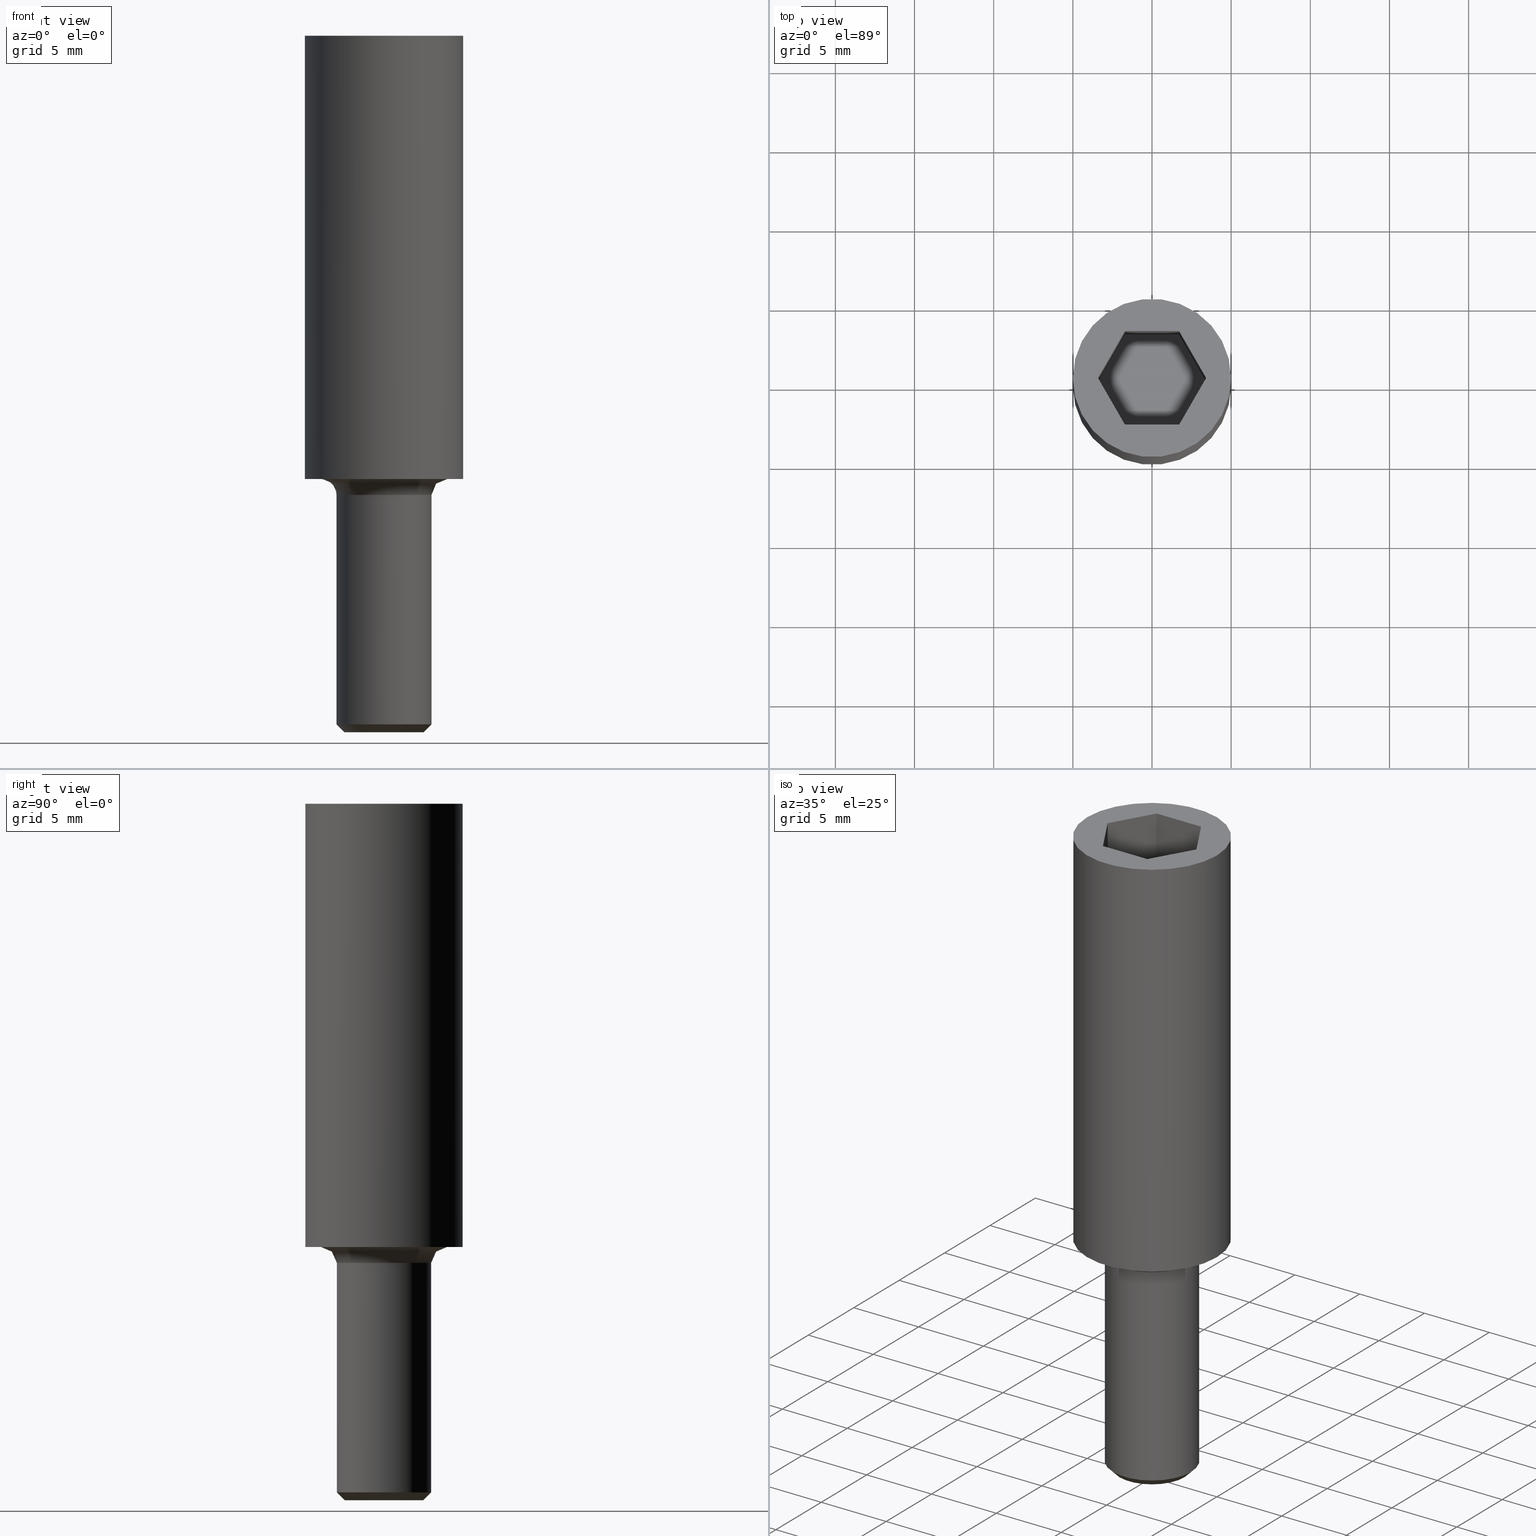
[diagram: canonical four-view strip — front | top / right | iso, engineering-drawing reading convention]
A machine part, canonical four-view strip (front | top / right | iso — engineering-drawing reading convention). The complete STEP part file that produces these views, byte-faithful:
ISO-10303-21;
HEADER;
/****************************************************************
 * Generated by software with PDE/Lib inside                    *
 * PDElib Version v4.4, created Mon 02/23/2004                  *
 * International Technegroup Inc. (www.iti-oh.com)              *
 ****************************************************************/
FILE_DESCRIPTION(('STEP AP203'),'2;1');
FILE_NAME('XT10203.stp','2011-02-02T13:37:32',(''),(''),'2009.3.110','THINKDESIGN','');
FILE_SCHEMA(('CONFIG_CONTROL_DESIGN'));
ENDSEC;
DATA;
#2=CARTESIAN_POINT('',(10.0,-10.0,27.999999999999886));
#3=DIRECTION('',(0.0,0.0,1.0));
#4=DIRECTION('',(0.0,1.0,0.0));
#5=AXIS2_PLACEMENT_3D('',#2,#3,#4);
#6=PLANE('',#5);
#7=CARTESIAN_POINT('',(5.0,0.0,27.999999999999886));
#8=VERTEX_POINT('',#7);
#9=CARTESIAN_POINT('',(-5.0,0.0,27.999999999999886));
#10=VERTEX_POINT('',#9);
#11=CARTESIAN_POINT('',(0.0,0.0,27.999999999999886));
#12=DIRECTION('',(0.0,-6.123234E-017,-1.0));
#13=DIRECTION('',(-1.0,0.0,0.0));
#14=AXIS2_PLACEMENT_3D('',#11,#12,#13);
#15=CIRCLE('',#14,5.0);
#16=EDGE_CURVE('',#8,#10,#15,.T.);
#17=ORIENTED_EDGE('',*,*,#16,.F.);
#18=CARTESIAN_POINT('',(0.0,0.0,27.999999999999886));
#19=DIRECTION('',(0.0,-6.123234E-017,-1.0));
#20=DIRECTION('',(-1.0,0.0,0.0));
#21=AXIS2_PLACEMENT_3D('',#18,#19,#20);
#22=CIRCLE('',#21,5.0);
#23=EDGE_CURVE('',#10,#8,#22,.T.);
#24=ORIENTED_EDGE('',*,*,#23,.F.);
#25=EDGE_LOOP('',(#17,#24));
#26=FACE_OUTER_BOUND('',#25,.T.);
#27=CARTESIAN_POINT('',(3.421172276945413,0.0,27.999999999999773));
#28=VERTEX_POINT('',#27);
#29=CARTESIAN_POINT('',(1.710586138472991,2.962822102557766,27.999999999999773));
#30=VERTEX_POINT('',#29);
#31=CARTESIAN_POINT('',(3.421172276945413,0.0,27.999999999999773));
#32=DIRECTION('',(-0.499999999999939,0.866025403784474,0.0));
#33=VECTOR('',#32,3.421172276945260);
#34=LINE('',#31,#33);
#35=EDGE_CURVE('',#28,#30,#34,.T.);
#36=ORIENTED_EDGE('',*,*,#35,.F.);
#37=CARTESIAN_POINT('',(1.710586138472991,-2.962822102557823,27.999999999999773));
#38=VERTEX_POINT('',#37);
#39=CARTESIAN_POINT('',(1.710586138472990,-2.962822102557823,27.999999999999773));
#40=DIRECTION('',(0.499999999999932,0.866025403784478,0.0));
#41=VECTOR('',#40,3.421172276945309);
#42=LINE('',#39,#41);
#43=EDGE_CURVE('',#38,#28,#42,.T.);
#44=ORIENTED_EDGE('',*,*,#43,.F.);
#45=CARTESIAN_POINT('',(-1.710586138472536,-2.962822102557823,27.999999999999773));
#46=VERTEX_POINT('',#45);
#47=CARTESIAN_POINT('',(-1.710586138472536,-2.962822102557823,27.999999999999773));
#48=DIRECTION('',(1.0,0.0,0.0));
#49=VECTOR('',#48,3.421172276945526);
#50=LINE('',#47,#49);
#51=EDGE_CURVE('',#46,#38,#50,.T.);
#52=ORIENTED_EDGE('',*,*,#51,.F.);
#53=CARTESIAN_POINT('',(-3.421172276945640,0.0,27.999999999999773));
#54=VERTEX_POINT('',#53);
#55=CARTESIAN_POINT('',(-3.421172276945641,0.0,27.999999999999773));
#56=DIRECTION('',(0.500000000000082,-0.866025403784391,0.0));
#57=VECTOR('',#56,3.421172276945650);
#58=LINE('',#55,#57);
#59=EDGE_CURVE('',#54,#46,#58,.T.);
#60=ORIENTED_EDGE('',*,*,#59,.F.);
#61=CARTESIAN_POINT('',(-1.710586138472536,2.962822102557766,27.999999999999773));
#62=VERTEX_POINT('',#61);
#63=CARTESIAN_POINT('',(-1.710586138472535,2.962822102557766,27.999999999999773));
#64=DIRECTION('',(-0.500000000000089,-0.866025403784387,0.0));
#65=VECTOR('',#64,3.421172276945601);
#66=LINE('',#63,#65);
#67=EDGE_CURVE('',#62,#54,#66,.T.);
#68=ORIENTED_EDGE('',*,*,#67,.F.);
#69=CARTESIAN_POINT('',(1.710586138472991,2.962822102557766,27.999999999999773));
#70=DIRECTION('',(-1.0,0.0,0.0));
#71=VECTOR('',#70,3.421172276945526);
#72=LINE('',#69,#71);
#73=EDGE_CURVE('',#30,#62,#72,.T.);
#74=ORIENTED_EDGE('',*,*,#73,.F.);
#75=EDGE_LOOP('',(#36,#44,#52,#60,#68,#74));
#76=FACE_BOUND('',#75,.T.);
#77=ADVANCED_FACE('',(#26,#76),#6,.T.);
#78=CARTESIAN_POINT('',(0.0,0.0,27.999999999999886));
#79=DIRECTION('',(0.0,-6.123234E-017,-1.0));
#80=DIRECTION('',(-1.0,0.0,0.0));
#81=AXIS2_PLACEMENT_3D('',#78,#79,#80);
#82=CYLINDRICAL_SURFACE('',#81,5.0);
#83=ORIENTED_EDGE('',*,*,#23,.T.);
#84=ORIENTED_EDGE('',*,*,#16,.T.);
#85=CARTESIAN_POINT('',(-5.0,0.0,0.0));
#86=VERTEX_POINT('',#85);
#87=CARTESIAN_POINT('',(-5.0,1.714506E-015,27.999999999999886));
#88=DIRECTION('',(0.0,0.0,-1.0));
#89=VECTOR('',#88,27.999999999999886);
#90=LINE('',#87,#89);
#91=EDGE_CURVE('',#10,#86,#90,.T.);
#92=ORIENTED_EDGE('',*,*,#91,.T.);
#93=CARTESIAN_POINT('',(5.0,0.0,0.0));
#94=VERTEX_POINT('',#93);
#95=CARTESIAN_POINT('',(0.0,0.0,0.0));
#96=DIRECTION('',(0.0,-6.123234E-017,-1.0));
#97=DIRECTION('',(-1.0,0.0,0.0));
#98=AXIS2_PLACEMENT_3D('',#95,#96,#97);
#99=CIRCLE('',#98,5.0);
#100=EDGE_CURVE('',#94,#86,#99,.T.);
#101=ORIENTED_EDGE('',*,*,#100,.F.);
#102=CARTESIAN_POINT('',(0.0,0.0,0.0));
#103=DIRECTION('',(0.0,-6.123234E-017,-1.0));
#104=DIRECTION('',(-1.0,0.0,0.0));
#105=AXIS2_PLACEMENT_3D('',#102,#103,#104);
#106=CIRCLE('',#105,5.0);
#107=EDGE_CURVE('',#86,#94,#106,.T.);
#108=ORIENTED_EDGE('',*,*,#107,.F.);
#109=ORIENTED_EDGE('',*,*,#91,.F.);
#110=EDGE_LOOP('',(#83,#84,#92,#101,#108,#109));
#111=FACE_OUTER_BOUND('',#110,.T.);
#112=ADVANCED_FACE('',(#111),#82,.T.);
#113=CARTESIAN_POINT('',(-3.0,-3.522098E-015,-15.500000000000000));
#114=CARTESIAN_POINT('',(-3.000000000000001,2.999999999999996,-15.500000000000002));
#115=CARTESIAN_POINT('',(-7.560974E-016,2.999999999999997,-15.500000000000000));
#116=CARTESIAN_POINT('',(2.999999999999999,2.999999999999998,-15.500000000000002));
#117=CARTESIAN_POINT('',(3.0,-2.009903E-015,-15.500000000000000));
#118=CARTESIAN_POINT('',(3.000000000000001,-3.000000000000002,-15.500000000000002));
#119=CARTESIAN_POINT('',(7.560974E-016,-3.000000000000003,-15.500000000000000));
#120=CARTESIAN_POINT('',(-2.999999999999999,-3.000000000000003,-15.500000000000002));
#121=CARTESIAN_POINT('',(-3.0,-3.522098E-015,-15.500000000000000));
#122=CARTESIAN_POINT('',(-2.500000000000000,-3.552714E-015,-16.0));
#123=CARTESIAN_POINT('',(-2.500000000000001,2.499999999999996,-16.0));
#124=CARTESIAN_POINT('',(-7.560974E-016,2.499999999999997,-16.0));
#125=CARTESIAN_POINT('',(2.499999999999999,2.499999999999998,-16.0));
#126=CARTESIAN_POINT('',(2.500000000000000,-2.040519E-015,-16.0));
#127=CARTESIAN_POINT('',(2.500000000000001,-2.500000000000002,-16.0));
#128=CARTESIAN_POINT('',(7.560974E-016,-2.500000000000003,-16.0));
#129=CARTESIAN_POINT('',(-2.499999999999999,-2.500000000000004,-16.0));
#130=CARTESIAN_POINT('',(-2.500000000000000,-3.552714E-015,-16.0));
#138=(BOUNDED_SURFACE()B_SPLINE_SURFACE(2,1,((#113,#122),(#114,#123),(#115,#124),(#116,#125),(#117,#126),(#118,#127),(#119,#128),(#120,#129),(#121,#130)),.UNSPECIFIED.,.T.,.F.,.U.)B_SPLINE_SURFACE_WITH_KNOTS((3,2,2,2,3),(2,2),(0.0,0.250000000000000,0.500000000000000,0.750000000000000,1.0),(-0.707106781186548,0.0),.UNSPECIFIED.)GEOMETRIC_REPRESENTATION_ITEM()RATIONAL_B_SPLINE_SURFACE(((1.0,1.0),(0.707106781186548,0.707106781186548),(1.0,1.0),(0.707106781186548,0.707106781186548),(1.0,1.0),(0.707106781186548,0.707106781186548),(1.0,1.0),(0.707106781186548,0.707106781186548),(1.0,1.0)))REPRESENTATION_ITEM('')SURFACE());
#139=CARTESIAN_POINT('',(-3.0,-3.552714E-015,-15.500000000000000));
#140=VERTEX_POINT('',#139);
#141=CARTESIAN_POINT('',(3.0,-3.552714E-015,-15.500000000000000));
#142=VERTEX_POINT('',#141);
#143=CARTESIAN_POINT('',(0.0,-3.552714E-015,-15.500000000000000));
#144=DIRECTION('',(0.0,-6.123234E-017,-1.0));
#145=DIRECTION('',(-1.0,0.0,0.0));
#146=AXIS2_PLACEMENT_3D('',#143,#144,#145);
#147=CIRCLE('',#146,3.0);
#148=EDGE_CURVE('',#140,#142,#147,.T.);
#149=ORIENTED_EDGE('',*,*,#148,.T.);
#150=CARTESIAN_POINT('',(0.0,-3.552714E-015,-15.500000000000000));
#151=DIRECTION('',(0.0,-6.123234E-017,-1.0));
#152=DIRECTION('',(-1.0,0.0,0.0));
#153=AXIS2_PLACEMENT_3D('',#150,#151,#152);
#154=CIRCLE('',#153,3.0);
#155=EDGE_CURVE('',#142,#140,#154,.T.);
#156=ORIENTED_EDGE('',*,*,#155,.T.);
#157=CARTESIAN_POINT('',(-2.500000000000000,-3.552714E-015,-16.0));
#158=VERTEX_POINT('',#157);
#159=CARTESIAN_POINT('',(-3.0,-3.522098E-015,-15.500000000000000));
#160=DIRECTION('',(0.707106781186547,-4.329780E-017,-0.707106781186547));
#161=VECTOR('',#160,0.707106781186548);
#162=LINE('',#159,#161);
#163=EDGE_CURVE('',#140,#158,#162,.T.);
#164=ORIENTED_EDGE('',*,*,#163,.T.);
#165=CARTESIAN_POINT('',(2.500000000000000,-3.552714E-015,-16.0));
#166=VERTEX_POINT('',#165);
#167=CARTESIAN_POINT('',(0.0,-3.552714E-015,-16.0));
#168=DIRECTION('',(0.0,-6.123234E-017,-1.0));
#169=DIRECTION('',(-1.0,0.0,0.0));
#170=AXIS2_PLACEMENT_3D('',#167,#168,#169);
#171=CIRCLE('',#170,2.500000000000000);
#172=EDGE_CURVE('',#166,#158,#171,.T.);
#173=ORIENTED_EDGE('',*,*,#172,.F.);
#174=CARTESIAN_POINT('',(0.0,-3.552714E-015,-16.0));
#175=DIRECTION('',(0.0,-6.123234E-017,-1.0));
#176=DIRECTION('',(-1.0,0.0,0.0));
#177=AXIS2_PLACEMENT_3D('',#174,#175,#176);
#178=CIRCLE('',#177,2.500000000000000);
#179=EDGE_CURVE('',#158,#166,#178,.T.);
#180=ORIENTED_EDGE('',*,*,#179,.F.);
#181=ORIENTED_EDGE('',*,*,#163,.F.);
#182=EDGE_LOOP('',(#149,#156,#164,#173,#180,#181));
#183=FACE_OUTER_BOUND('',#182,.T.);
#184=ADVANCED_FACE('',(#183),#138,.T.);
#185=CARTESIAN_POINT('',(-5.0,-5.000000000000004,-16.0));
#186=DIRECTION('',(0.0,0.0,-1.0));
#187=DIRECTION('',(0.0,1.0,0.0));
#188=AXIS2_PLACEMENT_3D('',#185,#186,#187);
#189=PLANE('',#188);
#190=ORIENTED_EDGE('',*,*,#179,.T.);
#191=ORIENTED_EDGE('',*,*,#172,.T.);
#192=EDGE_LOOP('',(#190,#191));
#193=FACE_OUTER_BOUND('',#192,.T.);
#194=ADVANCED_FACE('',(#193),#189,.T.);
#195=CARTESIAN_POINT('',(-10.0,-10.000000000000002,0.0));
#196=DIRECTION('',(0.0,0.0,-1.0));
#197=DIRECTION('',(0.0,1.0,0.0));
#198=AXIS2_PLACEMENT_3D('',#195,#196,#197);
#199=PLANE('',#198);
#200=ORIENTED_EDGE('',*,*,#107,.T.);
#201=ORIENTED_EDGE('',*,*,#100,.T.);
#202=EDGE_LOOP('',(#200,#201));
#203=FACE_OUTER_BOUND('',#202,.T.);
#204=CARTESIAN_POINT('',(4.0,0.0,0.0));
#205=VERTEX_POINT('',#204);
#206=CARTESIAN_POINT('',(-4.0,0.0,0.0));
#207=VERTEX_POINT('',#206);
#208=CARTESIAN_POINT('',(0.0,0.0,0.0));
#209=DIRECTION('',(0.0,-6.123234E-017,-1.0));
#210=DIRECTION('',(-1.0,0.0,0.0));
#211=AXIS2_PLACEMENT_3D('',#208,#209,#210);
#212=CIRCLE('',#211,4.0);
#213=EDGE_CURVE('',#205,#207,#212,.T.);
#214=ORIENTED_EDGE('',*,*,#213,.F.);
#215=CARTESIAN_POINT('',(0.0,0.0,0.0));
#216=DIRECTION('',(0.0,-6.123234E-017,-1.0));
#217=DIRECTION('',(-1.0,0.0,0.0));
#218=AXIS2_PLACEMENT_3D('',#215,#216,#217);
#219=CIRCLE('',#218,4.0);
#220=EDGE_CURVE('',#207,#205,#219,.T.);
#221=ORIENTED_EDGE('',*,*,#220,.F.);
#222=EDGE_LOOP('',(#214,#221));
#223=FACE_BOUND('',#222,.T.);
#224=ADVANCED_FACE('',(#203,#223),#199,.T.);
#225=CARTESIAN_POINT('',(0.0,0.0,0.0));
#226=DIRECTION('',(0.0,-6.123234E-017,-1.0));
#227=DIRECTION('',(-1.0,0.0,0.0));
#228=AXIS2_PLACEMENT_3D('',#225,#226,#227);
#229=CYLINDRICAL_SURFACE('',#228,3.0);
#230=ORIENTED_EDGE('',*,*,#155,.F.);
#231=ORIENTED_EDGE('',*,*,#148,.F.);
#232=CARTESIAN_POINT('',(-3.0,0.0,-1.0));
#233=VERTEX_POINT('',#232);
#234=CARTESIAN_POINT('',(-3.0,-2.664845E-015,-1.0));
#235=DIRECTION('',(0.0,0.0,-1.0));
#236=VECTOR('',#235,14.500000000000000);
#237=LINE('',#234,#236);
#238=EDGE_CURVE('',#233,#140,#237,.T.);
#239=ORIENTED_EDGE('',*,*,#238,.F.);
#240=CARTESIAN_POINT('',(3.0,0.0,-1.0));
#241=VERTEX_POINT('',#240);
#242=CARTESIAN_POINT('',(0.0,0.0,-1.0));
#243=DIRECTION('',(0.0,-6.123234E-017,-1.0));
#244=DIRECTION('',(-1.0,0.0,0.0));
#245=AXIS2_PLACEMENT_3D('',#242,#243,#244);
#246=CIRCLE('',#245,3.0);
#247=EDGE_CURVE('',#233,#241,#246,.T.);
#248=ORIENTED_EDGE('',*,*,#247,.T.);
#249=CARTESIAN_POINT('',(0.0,0.0,-1.0));
#250=DIRECTION('',(0.0,-6.123234E-017,-1.0));
#251=DIRECTION('',(-1.0,0.0,0.0));
#252=AXIS2_PLACEMENT_3D('',#249,#250,#251);
#253=CIRCLE('',#252,3.0);
#254=EDGE_CURVE('',#241,#233,#253,.T.);
#255=ORIENTED_EDGE('',*,*,#254,.T.);
#256=ORIENTED_EDGE('',*,*,#238,.T.);
#257=EDGE_LOOP('',(#230,#231,#239,#248,#255,#256));
#258=FACE_OUTER_BOUND('',#257,.T.);
#259=ADVANCED_FACE('',(#258),#229,.T.);
#260=CARTESIAN_POINT('',(-3.0,0.0,-1.0));
#261=CARTESIAN_POINT('',(-3.0,0.0,-0.869939785322581));
#262=CARTESIAN_POINT('',(-3.052038776115778,0.0,-0.606972182656724));
#263=CARTESIAN_POINT('',(-3.274587088527055,0.0,-0.274587088527053));
#264=CARTESIAN_POINT('',(-3.606972182656724,0.0,-0.052038776115779));
#265=CARTESIAN_POINT('',(-3.869939785322581,0.0,-7.963891E-018));
#266=CARTESIAN_POINT('',(-4.0,0.0,0.0));
#267=CARTESIAN_POINT('',(-3.0,0.390180644032257,-1.0));
#268=CARTESIAN_POINT('',(-3.0,0.390180644032257,-0.869939785322581));
#269=CARTESIAN_POINT('',(-3.052038776115778,0.396948818425425,-0.606972182656724));
#270=CARTESIAN_POINT('',(-3.274587088527055,0.425893499713733,-0.274587088527053));
#271=CARTESIAN_POINT('',(-3.606972182656724,0.469123576411812,-0.052038776115779));
#272=CARTESIAN_POINT('',(-3.869939785322581,0.503325199267739,-4.101004E-017));
#273=CARTESIAN_POINT('',(-4.0,0.520240858709675,-3.773245E-017));
#274=CARTESIAN_POINT('',(-2.881695132026207,0.984548886778619,-1.0));
#275=CARTESIAN_POINT('',(-2.881695132026207,0.984548886778619,-0.869939785322581));
#276=CARTESIAN_POINT('',(-2.931681761296019,1.001627126476656,-0.606972182656724));
#277=CARTESIAN_POINT('',(-3.145453890801431,1.074663690889650,-0.274587088527053));
#278=CARTESIAN_POINT('',(-3.464731393371940,1.183746815692041,-0.052038776115779));
#279=CARTESIAN_POINT('',(-3.717328880199542,1.270048302513211,4.963170E-018));
#280=CARTESIAN_POINT('',(-3.842260176034944,1.312731849038159,-3.932038E-017));
#281=CARTESIAN_POINT('',(-2.510343393690837,1.677238525654577,-1.000000000000000));
#282=CARTESIAN_POINT('',(-2.510343393690837,1.677238525654577,-0.869939785322581));
#283=CARTESIAN_POINT('',(-2.553888459636838,1.706332339031009,-0.606972182656725));
#284=CARTESIAN_POINT('',(-2.740112688249732,1.830754540162877,-0.274587088527053));
#285=CARTESIAN_POINT('',(-3.018246263319642,2.016584235238745,-0.052038776115779));
#286=CARTESIAN_POINT('',(-3.238292591355292,2.163604033302146,-2.698336E-016));
#287=CARTESIAN_POINT('',(-3.347124524921115,2.236318034206103,-2.558292E-016));
#288=CARTESIAN_POINT('',(-2.011822118074937,2.285908329214795,-1.000000000000000));
#289=CARTESIAN_POINT('',(-2.011822118074937,2.285908329214795,-0.869939785322581));
#290=CARTESIAN_POINT('',(-2.046719705004026,2.325560286469862,-0.606972182656725));
#291=CARTESIAN_POINT('',(-2.195962244087114,2.495135300134405,-0.274587088527053));
#292=CARTESIAN_POINT('',(-2.418862138783275,2.748402585193690,-0.052038776115779));
#293=CARTESIAN_POINT('',(-2.595210151910046,2.948775862942867,-2.267968E-016));
#294=CARTESIAN_POINT('',(-2.682429490766582,3.047877772286392,-2.027120E-016));
#295=CARTESIAN_POINT('',(-1.177631781629216,2.844239639793226,-1.000000000000000));
#296=CARTESIAN_POINT('',(-1.177631781629216,2.844239639793226,-0.869939785322581));
#297=CARTESIAN_POINT('',(-1.198059287172892,2.893576556404833,-0.606972182656725));
#298=CARTESIAN_POINT('',(-1.285419275720714,3.104570133714581,-0.274587088527053));
#299=CARTESIAN_POINT('',(-1.415895025916354,3.419697753847915,-0.052038776115779));
#300=CARTESIAN_POINT('',(-1.519121361395739,3.669012047009125,-1.987402E-016));
#301=CARTESIAN_POINT('',(-1.570175708838955,3.792319519724302,-2.280029E-016));
#302=CARTESIAN_POINT('',(-0.000082243839032,3.077983219408573,-1.000000000000000));
#303=CARTESIAN_POINT('',(-0.000082243839032,3.077983219408573,-0.869939785322581));
#304=CARTESIAN_POINT('',(-0.000083670461941,3.131374712622881,-0.606972182656725));
#305=CARTESIAN_POINT('',(-0.000089771537802,3.359708036326083,-0.274587088527053));
#306=CARTESIAN_POINT('',(-0.000098883746528,3.700733283696972,-0.052038776115779));
#307=CARTESIAN_POINT('',(-0.000106092901589,3.970536573114840,-2.424042E-016));
#308=CARTESIAN_POINT('',(-0.000109658452043,4.103977625878097,-2.225727E-016));
#309=CARTESIAN_POINT('',(1.177960756985342,2.843827482572481,-1.000000000000000));
#310=CARTESIAN_POINT('',(1.177960756985342,2.843827482572481,-0.869939785322581));
#311=CARTESIAN_POINT('',(1.198393969020654,2.893157249798311,-0.606972182656725));
#312=CARTESIAN_POINT('',(1.285778361871919,3.104120252143417,-0.274587088527053));
#313=CARTESIAN_POINT('',(1.416290560902462,3.419202207304545,-0.052038776115779));
#314=CARTESIAN_POINT('',(1.519545733002094,3.668480372467003,-2.116940E-016));
#315=CARTESIAN_POINT('',(1.570614342647124,3.791769976763309,-2.139739E-016));
#316=CARTESIAN_POINT('',(2.176540998469279,2.176538435504660,-1.000000000000000));
#317=CARTESIAN_POINT('',(2.176540998469279,2.176538435504660,-0.869939785322582));
#318=CARTESIAN_POINT('',(2.214295841711331,2.214293234288864,-0.606972182656725));
#319=CARTESIAN_POINT('',(2.375757683745761,2.375754886195479,-0.274587088527053));
#320=CARTESIAN_POINT('',(2.616907611963526,2.616904530449498,-0.052038776115779));
#321=CARTESIAN_POINT('',(2.807694201453999,2.807690895281084,-2.908709E-016));
#322=CARTESIAN_POINT('',(2.902054664625705,2.902051247339548,-2.537994E-016));
#323=CARTESIAN_POINT('',(2.843797310495395,1.177940836766737,-1.000000000000000));
#324=CARTESIAN_POINT('',(2.843797310495395,1.177940836766737,-0.869939785322581));
#325=CARTESIAN_POINT('',(2.893126554348569,1.198373703260784,-0.606972182656724));
#326=CARTESIAN_POINT('',(3.104087318445396,1.285756618375037,-0.274587088527053));
#327=CARTESIAN_POINT('',(3.419165930690298,1.416266610344336,-0.052038776115779));
#328=CARTESIAN_POINT('',(3.668441451093161,1.519520036319924,-6.002865E-017));
#329=CARTESIAN_POINT('',(3.791729747327193,1.570587782355650,-1.030960E-016));
#330=CARTESIAN_POINT('',(3.078101344752303,2.997602E-015,-1.0));
#331=CARTESIAN_POINT('',(3.078101344752303,2.997602E-015,-0.869939785322581));
#332=CARTESIAN_POINT('',(3.131494886999383,2.831069E-015,-0.606972182656724));
#333=CARTESIAN_POINT('',(3.359836973567885,3.219647E-015,-0.274587088527053));
#334=CARTESIAN_POINT('',(3.700875308639938,3.330669E-015,-0.052038776115779));
#335=CARTESIAN_POINT('',(3.970688952437292,3.719247E-015,-1.746625E-017));
#336=CARTESIAN_POINT('',(4.104135126336404,3.996803E-015,4.958412E-020));
#337=CARTESIAN_POINT('',(2.843797310495393,-1.177940836766743,-1.000000000000000));
#338=CARTESIAN_POINT('',(2.843797310495393,-1.177940836766743,-0.869939785322581));
#339=CARTESIAN_POINT('',(2.893126554348569,-1.198373703260788,-0.606972182656725));
#340=CARTESIAN_POINT('',(3.104087318445393,-1.285756618375043,-0.274587088527053));
#341=CARTESIAN_POINT('',(3.419165930690297,-1.416266610344341,-0.052038776115779));
#342=CARTESIAN_POINT('',(3.668441451093159,-1.519520036319929,8.211030E-017));
#343=CARTESIAN_POINT('',(3.791729747327192,-1.570587782355656,1.028977E-016));
#344=CARTESIAN_POINT('',(2.176540998469282,-2.176538435504656,-1.0));
#345=CARTESIAN_POINT('',(2.176540998469282,-2.176538435504656,-0.869939785322581));
#346=CARTESIAN_POINT('',(2.214295841711332,-2.214293234288860,-0.606972182656724));
#347=CARTESIAN_POINT('',(2.375757683745765,-2.375754886195472,-0.274587088527053));
#348=CARTESIAN_POINT('',(2.616907611963529,-2.616904530449495,-0.052038776115779));
#349=CARTESIAN_POINT('',(2.807694201454003,-2.807690895281078,3.073755E-016));
#350=CARTESIAN_POINT('',(2.902054664625709,-2.902051247339541,2.544936E-016));
#351=CARTESIAN_POINT('',(1.177960756985343,-2.843827482572483,-1.000000000000000));
#352=CARTESIAN_POINT('',(1.177960756985343,-2.843827482572483,-0.869939785322581));
#353=CARTESIAN_POINT('',(1.198393969020654,-2.893157249798311,-0.606972182656724));
#354=CARTESIAN_POINT('',(1.285778361871919,-3.104120252143417,-0.274587088527053));
#355=CARTESIAN_POINT('',(1.416290560902463,-3.419202207304546,-0.052038776115779));
#356=CARTESIAN_POINT('',(1.519545733002094,-3.668480372467003,1.698197E-016));
#357=CARTESIAN_POINT('',(1.570614342647123,-3.791769976763310,2.113955E-016));
#358=CARTESIAN_POINT('',(-0.000082243839032,-3.077983219408573,-1.000000000000000));
#359=CARTESIAN_POINT('',(-0.000082243839032,-3.077983219408573,-0.869939785322581));
#360=CARTESIAN_POINT('',(-0.000083670461940,-3.131374712622880,-0.606972182656724));
#361=CARTESIAN_POINT('',(-0.000089771537801,-3.359708036326082,-0.274587088527053));
#362=CARTESIAN_POINT('',(-0.000098883746528,-3.700733283696971,-0.052038776115779));
#363=CARTESIAN_POINT('',(-0.000106092901589,-3.970536573114839,2.426747E-016));
#364=CARTESIAN_POINT('',(-0.000109658452042,-4.103977625878096,2.321920E-016));
#365=CARTESIAN_POINT('',(-1.177631781629215,-2.844239639793227,-1.000000000000000));
#366=CARTESIAN_POINT('',(-1.177631781629215,-2.844239639793227,-0.869939785322581));
#367=CARTESIAN_POINT('',(-1.198059287172892,-2.893576556404836,-0.606972182656725));
#368=CARTESIAN_POINT('',(-1.285419275720713,-3.104570133714579,-0.274587088527053));
#369=CARTESIAN_POINT('',(-1.415895025916352,-3.419697753847917,-0.052038776115779));
#370=CARTESIAN_POINT('',(-1.519121361395738,-3.669012047009126,1.439658E-016));
#371=CARTESIAN_POINT('',(-1.570175708838954,-3.792319519724303,1.921040E-016));
#372=CARTESIAN_POINT('',(-2.011822118074935,-2.285908329214796,-1.0));
#373=CARTESIAN_POINT('',(-2.011822118074935,-2.285908329214796,-0.869939785322581));
#374=CARTESIAN_POINT('',(-2.046719705004025,-2.325560286469861,-0.606972182656724));
#375=CARTESIAN_POINT('',(-2.195962244087112,-2.495135300134407,-0.274587088527053));
#376=CARTESIAN_POINT('',(-2.418862138783276,-2.748402585193692,-0.052038776115778));
#377=CARTESIAN_POINT('',(-2.595210151910046,-2.948775862942868,3.665354E-016));
#378=CARTESIAN_POINT('',(-2.682429490766581,-3.047877772286394,3.085128E-016));
#379=CARTESIAN_POINT('',(-2.510343393690835,-1.677238525654579,-1.000000000000000));
#380=CARTESIAN_POINT('',(-2.510343393690835,-1.677238525654579,-0.869939785322581));
#381=CARTESIAN_POINT('',(-2.553888459636836,-1.706332339031011,-0.606972182656725));
#382=CARTESIAN_POINT('',(-2.740112688249731,-1.830754540162879,-0.274587088527053));
#383=CARTESIAN_POINT('',(-3.018246263319639,-2.016584235238747,-0.052038776115779));
#384=CARTESIAN_POINT('',(-3.238292591355290,-2.163604033302148,5.120764E-017));
#385=CARTESIAN_POINT('',(-3.347124524921113,-2.236318034206105,7.160299E-017));
#386=CARTESIAN_POINT('',(-2.881695132026210,-0.984548886778617,-1.000000000000000));
#387=CARTESIAN_POINT('',(-2.881695132026210,-0.984548886778617,-0.869939785322581));
#388=CARTESIAN_POINT('',(-2.931681761296023,-1.001627126476654,-0.606972182656725));
#389=CARTESIAN_POINT('',(-3.145453890801433,-1.074663690889646,-0.274587088527053));
#390=CARTESIAN_POINT('',(-3.464731393371944,-1.183746815692039,-0.052038776115779));
#391=CARTESIAN_POINT('',(-3.717328880199547,-1.270048302513209,1.496874E-016));
#392=CARTESIAN_POINT('',(-3.842260176034947,-1.312731849038155,1.492884E-016));
#393=CARTESIAN_POINT('',(-3.0,-0.390180644032258,-1.0));
#394=CARTESIAN_POINT('',(-3.0,-0.390180644032258,-0.869939785322581));
#395=CARTESIAN_POINT('',(-3.052038776115778,-0.396948818425426,-0.606972182656724));
#396=CARTESIAN_POINT('',(-3.274587088527055,-0.425893499713734,-0.274587088527053));
#397=CARTESIAN_POINT('',(-3.606972182656724,-0.469123576411813,-0.052038776115779));
#398=CARTESIAN_POINT('',(-3.869939785322581,-0.503325199267741,2.508225E-017));
#399=CARTESIAN_POINT('',(-4.0,-0.520240858709677,3.773245E-017));
#400=CARTESIAN_POINT('',(-3.0,-7.347881E-016,-1.0));
#401=CARTESIAN_POINT('',(-3.0,-7.347881E-016,-0.869939785322581));
#402=CARTESIAN_POINT('',(-3.052038776115778,-7.475339E-016,-0.606972182656724));
#403=CARTESIAN_POINT('',(-3.274587088527055,-8.020425E-016,-0.274587088527053));
#404=CARTESIAN_POINT('',(-3.606972182656724,-8.834534E-016,-0.052038776115779));
#405=CARTESIAN_POINT('',(-3.869939785322581,-9.478619E-016,-7.963891E-018));
#406=CARTESIAN_POINT('',(-4.0,-9.797174E-016,0.0));
#407=B_SPLINE_SURFACE_WITH_KNOTS('',3,3,((#260,#267,#274,#281,#288,#295,#302,#309,#316,#323,#330,#337,#344,#351,#358,#365,#372,#379,#386,#393,#400),(#261,#268,#275,#282,#289,#296,#303,#310,#317,#324,#331,#338,#345,#352,#359,#366,#373,#380,#387,#394,#401),(#262,#269,#276,#283,#290,#297,#304,#311,#318,#325,#332,#339,#346,#353,#360,#367,#374,#381,#388,#395,#402),(#263,#270,#277,#284,#291,#298,#305,#312,#319,#326,#333,#340,#347,#354,#361,#368,#375,#382,#389,#396,#403),(#264,#271,#278,#285,#292,#299,#306,#313,#320,#327,#334,#341,#348,#355,#362,#369,#376,#383,#390,#397,#404),(#265,#272,#279,#286,#293,#300,#307,#314,#321,#328,#335,#342,#349,#356,#363,#370,#377,#384,#391,#398,#405),(#266,#273,#280,#287,#294,#301,#308,#315,#322,#329,#336,#343,#350,#357,#364,#371,#378,#385,#392,#399,#406)),.UNSPECIFIED.,.F.,.T.,.U.,(4,1,1,1,4),(4,1,1,1,1,1,1,1,1,1,1,1,1,1,1,1,1,1,4),(0.0,0.390180644032257,0.780361288064513,1.170541932096770,1.560722576129026),(0.0,1.325547455645154,1.991528062118919,2.657508668592683,3.983056124237837,5.308603579882992,6.634151035528146,7.959698491173301,9.285245946818453,10.610793402463608,11.936340858108760,13.261888313753918,14.587435769399070,15.912983225044226,17.238530680689383,18.564078136334537,19.230058742808300,19.896039349282059,21.221586804927217),.UNSPECIFIED.);
#408=ORIENTED_EDGE('',*,*,#254,.F.);
#409=ORIENTED_EDGE('',*,*,#247,.F.);
#410=CARTESIAN_POINT('',(-4.0,0.0,-1.0));
#411=DIRECTION('',(0.0,-1.0,6.123234E-017));
#412=DIRECTION('',(1.0,0.0,0.0));
#413=AXIS2_PLACEMENT_3D('',#410,#411,#412);
#414=CIRCLE('',#413,1.0);
#415=EDGE_CURVE('',#233,#207,#414,.T.);
#416=ORIENTED_EDGE('',*,*,#415,.T.);
#417=ORIENTED_EDGE('',*,*,#220,.T.);
#418=ORIENTED_EDGE('',*,*,#213,.T.);
#419=ORIENTED_EDGE('',*,*,#415,.F.);
#420=EDGE_LOOP('',(#408,#409,#416,#417,#418,#419));
#421=FACE_OUTER_BOUND('',#420,.T.);
#422=ADVANCED_FACE('',(#421),#407,.T.);
#423=CARTESIAN_POINT('',(3.421172276945413,0.0,27.999999999999773));
#424=DIRECTION('',(-0.866025403784474,-0.499999999999939,3.061617E-017));
#425=DIRECTION('',(-0.499999999999939,0.866025403784474,-5.302876E-017));
#426=AXIS2_PLACEMENT_3D('',#423,#424,#425);
#427=PLANE('',#426);
#428=CARTESIAN_POINT('',(3.421172276945413,0.0,16.232834198551473));
#429=VERTEX_POINT('',#428);
#430=CARTESIAN_POINT('',(3.421172276945413,0.0,27.999999999999773));
#431=DIRECTION('',(0.0,0.0,-1.0));
#432=VECTOR('',#431,11.767165801448300);
#433=LINE('',#430,#432);
#434=EDGE_CURVE('',#28,#429,#433,.T.);
#435=ORIENTED_EDGE('',*,*,#434,.F.);
#436=ORIENTED_EDGE('',*,*,#35,.T.);
#437=CARTESIAN_POINT('',(1.710586138472991,2.962822102557766,16.232834198551473));
#438=VERTEX_POINT('',#437);
#439=CARTESIAN_POINT('',(1.710586138472991,2.962822102557766,27.999999999999773));
#440=DIRECTION('',(0.0,0.0,-1.0));
#441=VECTOR('',#440,11.767165801448300);
#442=LINE('',#439,#441);
#443=EDGE_CURVE('',#30,#438,#442,.T.);
#444=ORIENTED_EDGE('',*,*,#443,.T.);
#445=CARTESIAN_POINT('',(3.421172276945413,0.0,16.232834198551473));
#446=DIRECTION('',(-0.499999999999939,0.866025403784474,0.0));
#447=VECTOR('',#446,3.421172276945260);
#448=LINE('',#445,#447);
#449=EDGE_CURVE('',#429,#438,#448,.T.);
#450=ORIENTED_EDGE('',*,*,#449,.F.);
#451=EDGE_LOOP('',(#435,#436,#444,#450));
#452=FACE_OUTER_BOUND('',#451,.T.);
#453=ADVANCED_FACE('',(#452),#427,.T.);
#454=CARTESIAN_POINT('',(1.710586138472991,2.962822102557766,27.999999999999773));
#455=DIRECTION('',(0.0,-1.0,0.0));
#456=DIRECTION('',(-1.0,0.0,0.0));
#457=AXIS2_PLACEMENT_3D('',#454,#455,#456);
#458=PLANE('',#457);
#459=ORIENTED_EDGE('',*,*,#443,.F.);
#460=ORIENTED_EDGE('',*,*,#73,.T.);
#461=CARTESIAN_POINT('',(-1.710586138472536,2.962822102557766,16.232834198551473));
#462=VERTEX_POINT('',#461);
#463=CARTESIAN_POINT('',(-1.710586138472536,2.962822102557766,27.999999999999773));
#464=DIRECTION('',(0.0,0.0,-1.0));
#465=VECTOR('',#464,11.767165801448300);
#466=LINE('',#463,#465);
#467=EDGE_CURVE('',#62,#462,#466,.T.);
#468=ORIENTED_EDGE('',*,*,#467,.T.);
#469=CARTESIAN_POINT('',(1.710586138472991,2.962822102557766,16.232834198551473));
#470=DIRECTION('',(-1.0,0.0,0.0));
#471=VECTOR('',#470,3.421172276945526);
#472=LINE('',#469,#471);
#473=EDGE_CURVE('',#438,#462,#472,.T.);
#474=ORIENTED_EDGE('',*,*,#473,.F.);
#475=EDGE_LOOP('',(#459,#460,#468,#474));
#476=FACE_OUTER_BOUND('',#475,.T.);
#477=ADVANCED_FACE('',(#476),#458,.T.);
#478=CARTESIAN_POINT('',(-1.710586138472536,2.962822102557766,27.999999999999773));
#479=DIRECTION('',(0.866025403784387,-0.500000000000089,3.061617E-017));
#480=DIRECTION('',(-0.500000000000089,-0.866025403784387,5.302876E-017));
#481=AXIS2_PLACEMENT_3D('',#478,#479,#480);
#482=PLANE('',#481);
#483=ORIENTED_EDGE('',*,*,#467,.F.);
#484=ORIENTED_EDGE('',*,*,#67,.T.);
#485=CARTESIAN_POINT('',(-3.421172276945640,0.0,16.232834198551473));
#486=VERTEX_POINT('',#485);
#487=CARTESIAN_POINT('',(-3.421172276945640,0.0,27.999999999999773));
#488=DIRECTION('',(0.0,0.0,-1.0));
#489=VECTOR('',#488,11.767165801448300);
#490=LINE('',#487,#489);
#491=EDGE_CURVE('',#54,#486,#490,.T.);
#492=ORIENTED_EDGE('',*,*,#491,.T.);
#493=CARTESIAN_POINT('',(-1.710586138472535,2.962822102557766,16.232834198551473));
#494=DIRECTION('',(-0.500000000000089,-0.866025403784387,0.0));
#495=VECTOR('',#494,3.421172276945601);
#496=LINE('',#493,#495);
#497=EDGE_CURVE('',#462,#486,#496,.T.);
#498=ORIENTED_EDGE('',*,*,#497,.F.);
#499=EDGE_LOOP('',(#483,#484,#492,#498));
#500=FACE_OUTER_BOUND('',#499,.T.);
#501=ADVANCED_FACE('',(#500),#482,.T.);
#502=CARTESIAN_POINT('',(-3.421172276945640,0.0,27.999999999999773));
#503=DIRECTION('',(0.866025403784392,0.500000000000082,-3.061617E-017));
#504=DIRECTION('',(0.500000000000082,-0.866025403784392,5.302876E-017));
#505=AXIS2_PLACEMENT_3D('',#502,#503,#504);
#506=PLANE('',#505);
#507=ORIENTED_EDGE('',*,*,#491,.F.);
#508=ORIENTED_EDGE('',*,*,#59,.T.);
#509=CARTESIAN_POINT('',(-1.710586138472536,-2.962822102557823,16.232834198551473));
#510=VERTEX_POINT('',#509);
#511=CARTESIAN_POINT('',(-1.710586138472536,-2.962822102557823,27.999999999999773));
#512=DIRECTION('',(0.0,0.0,-1.0));
#513=VECTOR('',#512,11.767165801448300);
#514=LINE('',#511,#513);
#515=EDGE_CURVE('',#46,#510,#514,.T.);
#516=ORIENTED_EDGE('',*,*,#515,.T.);
#517=CARTESIAN_POINT('',(-3.421172276945641,0.0,16.232834198551473));
#518=DIRECTION('',(0.500000000000082,-0.866025403784391,0.0));
#519=VECTOR('',#518,3.421172276945650);
#520=LINE('',#517,#519);
#521=EDGE_CURVE('',#486,#510,#520,.T.);
#522=ORIENTED_EDGE('',*,*,#521,.F.);
#523=EDGE_LOOP('',(#507,#508,#516,#522));
#524=FACE_OUTER_BOUND('',#523,.T.);
#525=ADVANCED_FACE('',(#524),#506,.T.);
#526=CARTESIAN_POINT('',(-1.710586138472536,-2.962822102557823,27.999999999999773));
#527=DIRECTION('',(0.0,1.0,0.0));
#528=DIRECTION('',(1.0,0.0,0.0));
#529=AXIS2_PLACEMENT_3D('',#526,#527,#528);
#530=PLANE('',#529);
#531=ORIENTED_EDGE('',*,*,#515,.F.);
#532=ORIENTED_EDGE('',*,*,#51,.T.);
#533=CARTESIAN_POINT('',(1.710586138472991,-2.962822102557823,16.232834198551473));
#534=VERTEX_POINT('',#533);
#535=CARTESIAN_POINT('',(1.710586138472991,-2.962822102557823,27.999999999999773));
#536=DIRECTION('',(0.0,0.0,-1.0));
#537=VECTOR('',#536,11.767165801448300);
#538=LINE('',#535,#537);
#539=EDGE_CURVE('',#38,#534,#538,.T.);
#540=ORIENTED_EDGE('',*,*,#539,.T.);
#541=CARTESIAN_POINT('',(-1.710586138472536,-2.962822102557823,16.232834198551473));
#542=DIRECTION('',(1.0,0.0,0.0));
#543=VECTOR('',#542,3.421172276945526);
#544=LINE('',#541,#543);
#545=EDGE_CURVE('',#510,#534,#544,.T.);
#546=ORIENTED_EDGE('',*,*,#545,.F.);
#547=EDGE_LOOP('',(#531,#532,#540,#546));
#548=FACE_OUTER_BOUND('',#547,.T.);
#549=ADVANCED_FACE('',(#548),#530,.T.);
#550=CARTESIAN_POINT('',(1.710586138472991,-2.962822102557823,27.999999999999773));
#551=DIRECTION('',(-0.866025403784478,0.499999999999932,-3.061617E-017));
#552=DIRECTION('',(0.499999999999932,0.866025403784478,-5.302876E-017));
#553=AXIS2_PLACEMENT_3D('',#550,#551,#552);
#554=PLANE('',#553);
#555=CARTESIAN_POINT('',(1.710586138472990,-2.962822102557823,16.232834198551473));
#556=DIRECTION('',(0.499999999999932,0.866025403784478,0.0));
#557=VECTOR('',#556,3.421172276945309);
#558=LINE('',#555,#557);
#559=EDGE_CURVE('',#534,#429,#558,.T.);
#560=ORIENTED_EDGE('',*,*,#559,.F.);
#561=ORIENTED_EDGE('',*,*,#539,.F.);
#562=ORIENTED_EDGE('',*,*,#43,.T.);
#563=ORIENTED_EDGE('',*,*,#434,.T.);
#564=EDGE_LOOP('',(#560,#561,#562,#563));
#565=FACE_OUTER_BOUND('',#564,.T.);
#566=ADVANCED_FACE('',(#565),#554,.T.);
#567=CARTESIAN_POINT('',(4.105526732343265,-3.555506523078122,16.232834198551586));
#568=DIRECTION('',(0.0,0.0,1.0));
#569=DIRECTION('',(0.0,1.0,0.0));
#570=AXIS2_PLACEMENT_3D('',#567,#568,#569);
#571=PLANE('',#570);
#572=ORIENTED_EDGE('',*,*,#449,.T.);
#573=ORIENTED_EDGE('',*,*,#473,.T.);
#574=ORIENTED_EDGE('',*,*,#497,.T.);
#575=ORIENTED_EDGE('',*,*,#521,.T.);
#576=ORIENTED_EDGE('',*,*,#545,.T.);
#577=ORIENTED_EDGE('',*,*,#559,.T.);
#578=EDGE_LOOP('',(#572,#573,#574,#575,#576,#577));
#579=FACE_OUTER_BOUND('',#578,.T.);
#580=ADVANCED_FACE('',(#579),#571,.T.);
#581=CLOSED_SHELL('',(#77,#112,#184,#194,#224,#259,#422,#453,#477,#501,#525,#549,#566,#580));
#582=MANIFOLD_SOLID_BREP('',#581);
#588=(NAMED_UNIT(*)PLANE_ANGLE_UNIT()SI_UNIT($,.RADIAN.));
#589=DIMENSIONAL_EXPONENTS(0.0,0.0,0.0,0.0,0.0,0.0,0.0);
#590=PLANE_ANGLE_MEASURE_WITH_UNIT(PLANE_ANGLE_MEASURE(0.017453292500000),#588);
#594=(CONVERSION_BASED_UNIT('DEGREE',#590)NAMED_UNIT(#589)PLANE_ANGLE_UNIT());
#598=(NAMED_UNIT(*)SI_UNIT($,.STERADIAN.)SOLID_ANGLE_UNIT());
#602=(LENGTH_UNIT()NAMED_UNIT(*)SI_UNIT(.MILLI.,.METRE.));
#604=UNCERTAINTY_MEASURE_WITH_UNIT(LENGTH_MEASURE(0.001000000000000),#602,'DISTANCE_ACCURACY_VALUE','');
#606=(GEOMETRIC_REPRESENTATION_CONTEXT(3)GLOBAL_UNCERTAINTY_ASSIGNED_CONTEXT((#604))GLOBAL_UNIT_ASSIGNED_CONTEXT((#594,#598,#602))REPRESENTATION_CONTEXT('thinkdesign','2009.3.110'));
#607=ADVANCED_BREP_SHAPE_REPRESENTATION('',(#582),#606);
#608=APPLICATION_CONTEXT('configuration controlled 3D designs of mechanical parts and assemblies');
#609=APPLICATION_PROTOCOL_DEFINITION('International Standard','config_control_design',1995,#608);
#610=MECHANICAL_CONTEXT('None',#608,'mechanical');
#611=PRODUCT('None','None','None',(#610));
#612=PRODUCT_RELATED_PRODUCT_CATEGORY('detail',$,(#611));
#613=PRODUCT_CATEGORY('part',$);
#614=PRODUCT_CATEGORY_RELATIONSHIP('None','None',#613,#612);
#615=PERSON('PERSON1','None','None',$,$,$);
#616=ORGANIZATION('','None','None');
#617=PERSON_AND_ORGANIZATION(#615,#616);
#618=PERSON_AND_ORGANIZATION_ROLE('design_owner');
#619=CC_DESIGN_PERSON_AND_ORGANIZATION_ASSIGNMENT(#617,#618,(#611));
#620=PRODUCT_DEFINITION_FORMATION_WITH_SPECIFIED_SOURCE('None','None',#611,.NOT_KNOWN.);
#621=PERSON('PERSON2','None','None',$,$,$);
#622=ORGANIZATION('','None','None');
#623=PERSON_AND_ORGANIZATION(#621,#622);
#624=PERSON_AND_ORGANIZATION_ROLE('creator');
#625=CC_DESIGN_PERSON_AND_ORGANIZATION_ASSIGNMENT(#623,#624,(#620));
#626=PERSON('PERSON3','None','None',$,$,$);
#627=ORGANIZATION('','None','None');
#628=PERSON_AND_ORGANIZATION(#626,#627);
#629=PERSON_AND_ORGANIZATION_ROLE('part_supplier');
#630=CC_DESIGN_PERSON_AND_ORGANIZATION_ASSIGNMENT(#628,#629,(#620));
#631=APPROVAL_STATUS('approved');
#632=APPROVAL(#631,'None');
#633=PERSON('PERSON4','None','None',$,$,$);
#634=ORGANIZATION('','None','None');
#635=PERSON_AND_ORGANIZATION(#633,#634);
#636=APPROVAL_ROLE('None');
#637=APPROVAL_PERSON_ORGANIZATION(#635,#632,#636);
#638=CALENDAR_DATE(2011,2,2);
#639=COORDINATED_UNIVERSAL_TIME_OFFSET(0,0,.AHEAD.);
#640=LOCAL_TIME(13,37,32.0,#639);
#641=DATE_AND_TIME(#638,#640);
#642=APPROVAL_DATE_TIME(#641,#632);
#643=CC_DESIGN_APPROVAL(#632,(#620));
#644=SECURITY_CLASSIFICATION_LEVEL('unclassified');
#645=SECURITY_CLASSIFICATION('None','None',#644);
#646=CC_DESIGN_SECURITY_CLASSIFICATION(#645,(#620));
#647=APPROVAL_STATUS('approved');
#648=APPROVAL(#647,'None');
#649=PERSON('PERSON5','None','None',$,$,$);
#650=ORGANIZATION('','None','None');
#651=PERSON_AND_ORGANIZATION(#649,#650);
#652=APPROVAL_ROLE('None');
#653=APPROVAL_PERSON_ORGANIZATION(#651,#648,#652);
#654=CALENDAR_DATE(2011,2,2);
#655=COORDINATED_UNIVERSAL_TIME_OFFSET(0,0,.AHEAD.);
#656=LOCAL_TIME(13,37,32.0,#655);
#657=DATE_AND_TIME(#654,#656);
#658=APPROVAL_DATE_TIME(#657,#648);
#659=CC_DESIGN_APPROVAL(#648,(#645));
#660=PERSON('PERSON6','None','None',$,$,$);
#661=ORGANIZATION('','None','None');
#662=PERSON_AND_ORGANIZATION(#660,#661);
#663=PERSON_AND_ORGANIZATION_ROLE('classification_officer');
#664=CC_DESIGN_PERSON_AND_ORGANIZATION_ASSIGNMENT(#662,#663,(#645));
#665=DATE_TIME_ROLE('classification_date');
#666=CALENDAR_DATE(2011,2,2);
#667=COORDINATED_UNIVERSAL_TIME_OFFSET(0,0,.AHEAD.);
#668=LOCAL_TIME(13,37,32.0,#667);
#669=DATE_AND_TIME(#666,#668);
#670=CC_DESIGN_DATE_AND_TIME_ASSIGNMENT(#669,#665,(#645));
#671=DESIGN_CONTEXT('part definition',#608,'design');
#672=DOCUMENT_TYPE('cad_filename');
#673=DOCUMENT('None','None','None',#672);
#674=PRODUCT_DEFINITION_WITH_ASSOCIATED_DOCUMENTS('None','None',#620,#671,(#673));
#675=PERSON('PERSON7','None','None',$,$,$);
#676=ORGANIZATION('','None','None');
#677=PERSON_AND_ORGANIZATION(#675,#676);
#678=PERSON_AND_ORGANIZATION_ROLE('creator');
#679=CC_DESIGN_PERSON_AND_ORGANIZATION_ASSIGNMENT(#677,#678,(#674));
#680=DATE_TIME_ROLE('creation_date');
#681=CALENDAR_DATE(2011,2,2);
#682=COORDINATED_UNIVERSAL_TIME_OFFSET(0,0,.AHEAD.);
#683=LOCAL_TIME(13,37,32.0,#682);
#684=DATE_AND_TIME(#681,#683);
#685=CC_DESIGN_DATE_AND_TIME_ASSIGNMENT(#684,#680,(#674));
#686=APPROVAL_STATUS('approved');
#687=APPROVAL(#686,'None');
#688=PERSON('PERSON8','None','None',$,$,$);
#689=ORGANIZATION('','None','None');
#690=PERSON_AND_ORGANIZATION(#688,#689);
#691=APPROVAL_ROLE('None');
#692=APPROVAL_PERSON_ORGANIZATION(#690,#687,#691);
#693=CALENDAR_DATE(2011,2,2);
#694=COORDINATED_UNIVERSAL_TIME_OFFSET(0,0,.AHEAD.);
#695=LOCAL_TIME(13,37,32.0,#694);
#696=DATE_AND_TIME(#693,#695);
#697=APPROVAL_DATE_TIME(#696,#687);
#698=CC_DESIGN_APPROVAL(#687,(#674));
#699=PRODUCT_DEFINITION_SHAPE('None','None',#674);
#700=SHAPE_DEFINITION_REPRESENTATION(#699,#607);
#701=DIMENSIONAL_EXPONENTS(0.0,0.0,0.0,0.0,0.0,0.0,0.0);
#702=DIMENSIONAL_EXPONENTS(1.0,0.0,0.0,0.0,0.0,0.0,0.0);
ENDSEC;
END-ISO-10303-21;
